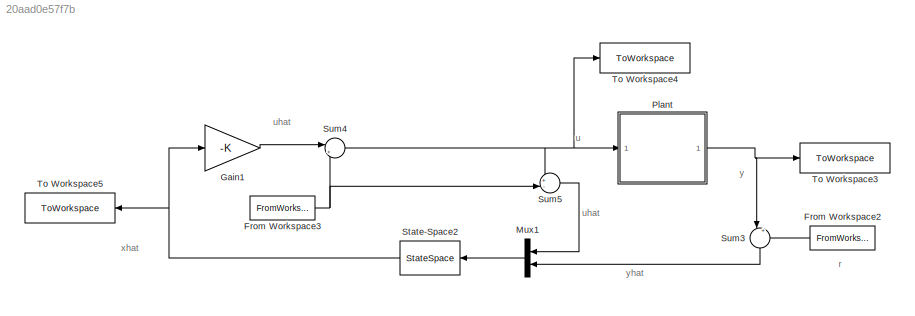
MODEL slx_20aad0e57f7b
KIND model
CONFIG AbsTol = auto
CONFIG EnableMultiTasking = off
CONFIG FixedStep = auto
CONFIG MaxStep = auto
CONFIG MinStep = auto
CONFIG RelTol = 1e-3
CONFIG SampleTimeConstraint = Unconstrained
CONFIG Solver = VariableStepAuto
CONFIG SolverName = VariableStepAuto
CONFIG StartTime = 0.0
CONFIG StopTime = 30
BLOCK [FromWorkspace] From Workspace2
  SampleTime = 0
  VariableName = ref
  ZeroCross = on
BLOCK [FromWorkspace] From Workspace3
  SampleTime = 0
  VariableName = ustar_t
  ZeroCross = on
BLOCK [Gain] Gain1
  Gain = -K
  Multiplication = Matrix(K*u)
  OutDataTypeStr = Inherit: Inherit via internal rule
  ParamDataTypeStr = Inherit: Inherit via internal rule
  SaturateOnIntegerOverflow = off
BLOCK [Mux] Mux1
  DisplayOption = bar
  Inputs = 2
  Ports = [2, 1]
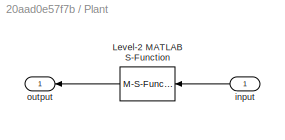
BLOCK [SubSystem] Plant
  Ports = [1, 1]
  RequestExecContextInheritance = off
BLOCK [M-S-Function] Plant/Level-2 MATLAB S-Function
  FunctionName = virtualPlant
  Ports = [1, 1]
BLOCK [Inport] Plant/input
  IconDisplay = Port number
BLOCK [Outport] Plant/output
  IconDisplay = Port number
BLOCK [StateSpace] State-Space2
  A = A_obs
  B = B_obs
  C = C_obs
  ContinuousStateAttributes = 'observer_state'
  D = D_obs
  InitialCondition = xhat_init
  Ports = [1, 1]
BLOCK [Sum] Sum3
  IconShape = round
  InputSameDT = off
  Inputs = |+-
  OutDataTypeStr = Inherit: Inherit via internal rule
  Ports = [2, 1]
  SaturateOnIntegerOverflow = off
BLOCK [Sum] Sum4
  IconShape = round
  InputSameDT = off
  Inputs = |++
  OutDataTypeStr = Inherit: Inherit via internal rule
  Ports = [2, 1]
  SaturateOnIntegerOverflow = off
BLOCK [Sum] Sum5
  IconShape = round
  InputSameDT = off
  Inputs = +-
  OutDataTypeStr = Inherit: Inherit via internal rule
  Ports = [2, 1]
  SaturateOnIntegerOverflow = off
BLOCK [ToWorkspace] To Workspace3
  FixptAsFi = on
  MaxDataPoints = inf
  Ports = [1]
  SampleTime = -1
  SaveFormat = Timeseries
  VariableName = yout
BLOCK [ToWorkspace] To Workspace4
  FixptAsFi = on
  MaxDataPoints = inf
  Ports = [1]
  SampleTime = -1
  SaveFormat = Timeseries
  VariableName = uout
BLOCK [ToWorkspace] To Workspace5
  FixptAsFi = on
  MaxDataPoints = inf
  Ports = [1]
  SampleTime = -1
  SaveFormat = Timeseries
  VariableName = xhatout
ANNOTATION (root): r
ANNOTATION (root): u
ANNOTATION (root): uhat
ANNOTATION (root): xhat
ANNOTATION (root): y
ANNOTATION (root): yhat
LINE From Workspace2:1 -> Sum3:2
NET From Workspace3:1 -> Sum4:2, Sum5:2
LINE Gain1:1 -> Sum4:1
LINE Mux1:1 -> State-Space2:1
LINE Plant/Level-2 MATLAB S-Function:1 -> Plant/output:1
LINE Plant/input:1 -> Plant/Level-2 MATLAB S-Function:1
NET Plant:1 -> Sum3:1, To Workspace3:1
NET State-Space2:1 -> Gain1:1, To Workspace5:1
LINE Sum3:1 -> Mux1:2
NET Sum4:1 -> Plant:1, Sum5:1, To Workspace4:1
LINE Sum5:1 -> Mux1:1
note: NET lines group one-source signal fan-out (src -> all destinations, sorted); 1:1 wires keep LINE
